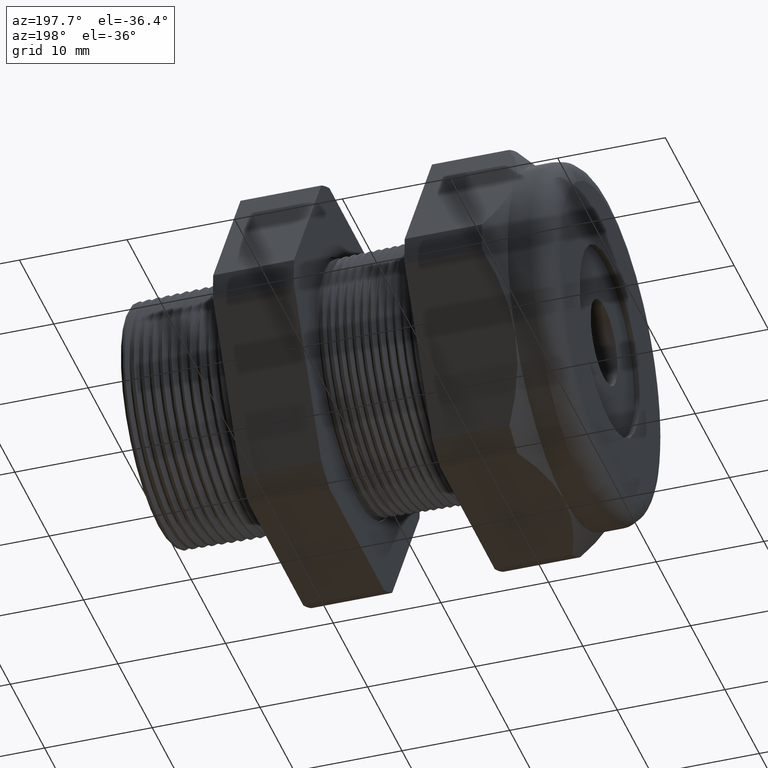
[diagram: clean part render]
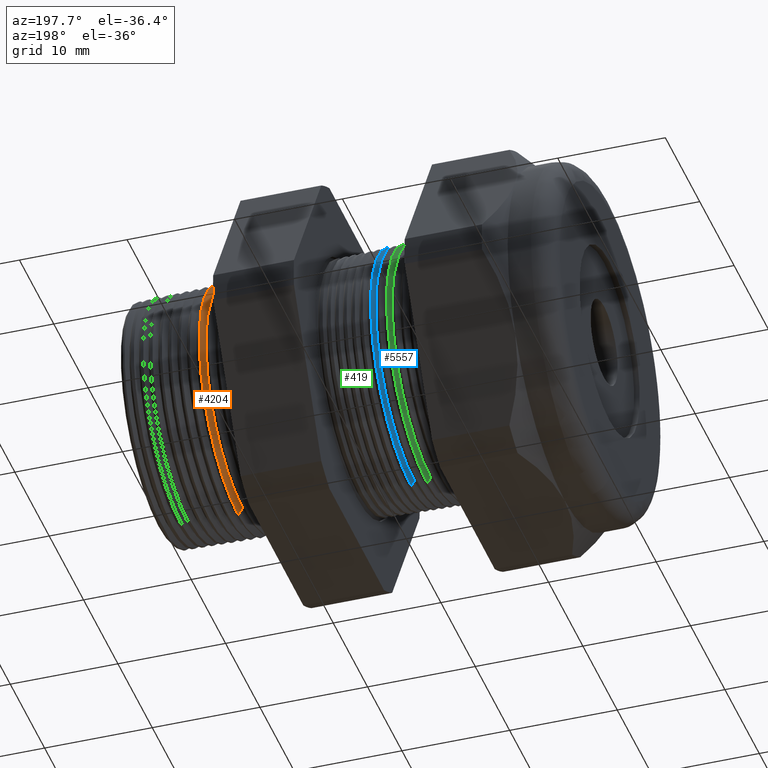
[diagram: same view with three faces highlighted in distinct colors, each labeled with its STEP entity id]
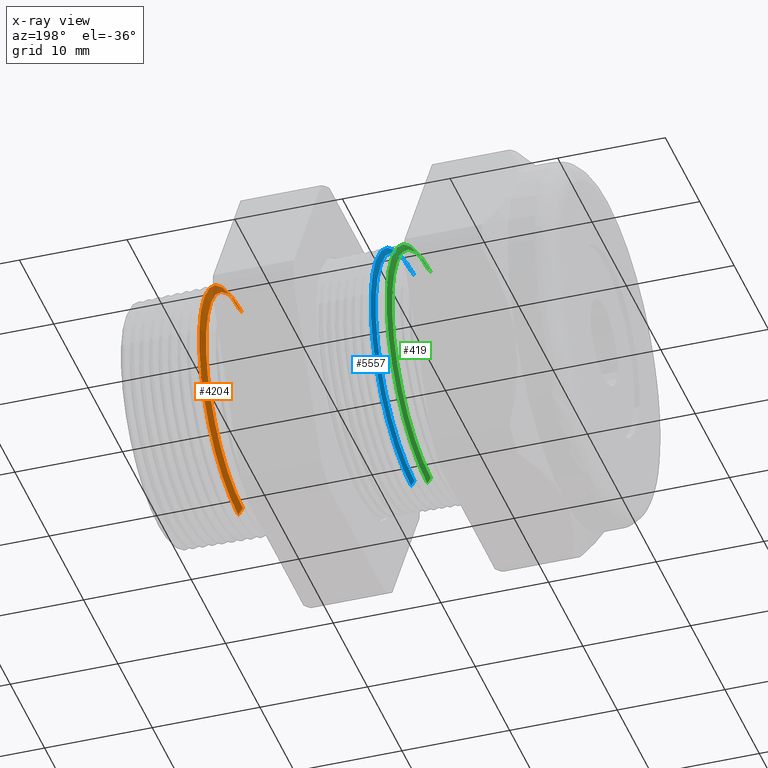
[diagram: x-ray of the same camera — body ghosted, the three highlighted faces saturated]
A machine part, auxiliary view with three faces highlighted in distinct colors.
The next image is the same camera in x-ray (body ghosted, the three faces saturated) — at least one of them is partly hidden behind the body in this view.
Their STEP definitions:

[orange] entity #4204 — the highlighted conical surface has half-angle 58.5 deg.
#1568 = CONICAL_SURFACE ( 'NONE', #1629, 0.4212184895733915900, 1.021017612416699400 ) ;
#1569 = FACE_OUTER_BOUND ( 'NONE', #4205, .T. ) ;
#1603 = DIRECTION ( 'NONE',  ( 0.5224985647159347000, 0.0000000000000000000, -0.8526401643541008400 ) ) ;
#1604 = VECTOR ( 'NONE', #1603, 39.37007874015748100 ) ;
#1605 = CARTESIAN_POINT ( 'NONE',  ( -0.1884707356790752100, 0.0000000000000000000, -0.4212184895733915900 ) ) ;
#1606 = LINE ( 'NONE', #1605, #1604 ) ;
#1621 = CARTESIAN_POINT ( 'NONE',  ( -0.1884707356790752100, 5.327770295935951800E-017, -0.4212184895733915900 ) ) ;
#1622 = DIRECTION ( 'NONE',  ( 0.0000000000000000000, 0.0000000000000000000, -1.000000000000000000 ) ) ;
#1623 = DIRECTION ( 'NONE',  ( 1.000000000000000000, 0.0000000000000000000, 0.0000000000000000000 ) ) ;
#1624 = AXIS2_PLACEMENT_3D ( 'NONE', #1630, #1623, #1622 ) ;
#1625 = CIRCLE ( 'NONE', #1624, 0.4212184895733915900 ) ;
#1626 = DIRECTION ( 'NONE',  ( 0.0000000000000000000, 0.0000000000000000000, -1.000000000000000000 ) ) ;
#1627 = DIRECTION ( 'NONE',  ( 1.000000000000000000, 0.0000000000000000000, 0.0000000000000000000 ) ) ;
#1628 = CARTESIAN_POINT ( 'NONE',  ( -0.1884707356790752100, 0.0000000000000000000, 0.0000000000000000000 ) ) ;
#1629 = AXIS2_PLACEMENT_3D ( 'NONE', #1628, #1627, #1626 ) ;
#1630 = CARTESIAN_POINT ( 'NONE',  ( -0.1884707356790752100, 0.0000000000000000000, 0.0000000000000000000 ) ) ;
#1647 = CARTESIAN_POINT ( 'NONE',  ( -0.1720291532523846000, 5.487014229667634400E-017, -0.4480487135954552300 ) ) ;
#1648 = DIRECTION ( 'NONE',  ( 0.0000000000000000000, 0.0000000000000000000, -1.000000000000000000 ) ) ;
#1649 = DIRECTION ( 'NONE',  ( -1.000000000000000000, 0.0000000000000000000, 0.0000000000000000000 ) ) ;
#1650 = CARTESIAN_POINT ( 'NONE',  ( -0.1720291532523846000, 0.0000000000000000000, 0.0000000000000000000 ) ) ;
#1651 = AXIS2_PLACEMENT_3D ( 'NONE', #1650, #1649, #1648 ) ;
#1652 = CIRCLE ( 'NONE', #1651, 0.4480487135954552300 ) ;
#1653 = CARTESIAN_POINT ( 'NONE',  ( -0.1720291532523846000, 0.0000000000000000000, 0.4480487135954552300 ) ) ;
#1654 = DIRECTION ( 'NONE',  ( 0.5224985647159347000, 1.044183048100722800E-016, 0.8526401643541008400 ) ) ;
#1655 = VECTOR ( 'NONE', #1654, 39.37007874015748100 ) ;
#1656 = CARTESIAN_POINT ( 'NONE',  ( -0.1884707356790752100, 5.158438749977368000E-017, 0.4212184895733915900 ) ) ;
#1657 = LINE ( 'NONE', #1656, #1655 ) ;
#1658 = CARTESIAN_POINT ( 'NONE',  ( -0.1884707356790752100, 0.0000000000000000000, 0.4212184895733915900 ) ) ;
#4204 = ADVANCED_FACE ( 'NONE', ( #1569 ), #1568, .T. ) ;
#4205 = EDGE_LOOP ( 'NONE', ( #4206, #4219, #4222, #4225 ) ) ;
#4206 = ORIENTED_EDGE ( 'NONE', *, *, #4207, .T. ) ;
#4207 = EDGE_CURVE ( 'NONE', #4208, #4218, #1625, .T. ) ;
#4208 = VERTEX_POINT ( 'NONE', #1621 ) ;
#4215 = EDGE_CURVE ( 'NONE', #4208, #4224, #1606, .T. ) ;
#4218 = VERTEX_POINT ( 'NONE', #1658 ) ;
#4219 = ORIENTED_EDGE ( 'NONE', *, *, #4220, .T. ) ;
#4220 = EDGE_CURVE ( 'NONE', #4218, #4221, #1657, .T. ) ;
#4221 = VERTEX_POINT ( 'NONE', #1653 ) ;
#4222 = ORIENTED_EDGE ( 'NONE', *, *, #4223, .T. ) ;
#4223 = EDGE_CURVE ( 'NONE', #4221, #4224, #1652, .T. ) ;
#4224 = VERTEX_POINT ( 'NONE', #1647 ) ;
#4225 = ORIENTED_EDGE ( 'NONE', *, *, #4215, .F. ) ;

[blue] entity #5557 — the highlighted conical surface has half-angle 58.5 deg.
#3968 = LINE ( 'NONE', #4027, #4026 ) ;
#3969 = CARTESIAN_POINT ( 'NONE',  ( -0.8165405736958172300, 5.571220089116329200E-017, -0.4446307351718083400 ) ) ;
#3970 = DIRECTION ( 'NONE',  ( 0.0000000000000000000, 0.0000000000000000000, -1.000000000000000000 ) ) ;
#3971 = DIRECTION ( 'NONE',  ( 1.000000000000000000, 0.0000000000000000000, 0.0000000000000000000 ) ) ;
#3972 = CARTESIAN_POINT ( 'NONE',  ( -0.8165405736958172300, 0.0000000000000000000, 0.0000000000000000000 ) ) ;
#3973 = AXIS2_PLACEMENT_3D ( 'NONE', #3972, #3971, #3970 ) ;
#3974 = CONICAL_SURFACE ( 'NONE', #3973, 0.4446307351718083400, 1.021017612416699200 ) ;
#3979 = FACE_OUTER_BOUND ( 'NONE', #5570, .T. ) ;
#4007 = DIRECTION ( 'NONE',  ( 0.0000000000000000000, 0.0000000000000000000, -1.000000000000000000 ) ) ;
#4008 = DIRECTION ( 'NONE',  ( -1.000000000000000000, 0.0000000000000000000, 0.0000000000000000000 ) ) ;
#4009 = CARTESIAN_POINT ( 'NONE',  ( -0.8043001372766740400, 0.0000000000000000000, 0.0000000000000000000 ) ) ;
#4010 = AXIS2_PLACEMENT_3D ( 'NONE', #4009, #4008, #4007 ) ;
#4011 = CIRCLE ( 'NONE', #4010, 0.4646053119935832900 ) ;
#4012 = CARTESIAN_POINT ( 'NONE',  ( -0.8043001372766740400, 5.689774081997992500E-017, -0.4646053119935833500 ) ) ;
#4013 = DIRECTION ( 'NONE',  ( 0.5224985647159348100, 1.044183048100722500E-016, 0.8526401643541007300 ) ) ;
#4014 = VECTOR ( 'NONE', #4013, 39.37007874015748900 ) ;
#4015 = CARTESIAN_POINT ( 'NONE',  ( -0.8165405736958172300, 5.445156066306895900E-017, 0.4446307351718083400 ) ) ;
#4016 = LINE ( 'NONE', #4015, #4014 ) ;
#4018 = CARTESIAN_POINT ( 'NONE',  ( -0.8043001372766740400, 0.0000000000000000000, 0.4646053119935833500 ) ) ;
#4019 = CARTESIAN_POINT ( 'NONE',  ( -0.8165405736958172300, 0.0000000000000000000, 0.4446307351718083400 ) ) ;
#4020 = DIRECTION ( 'NONE',  ( 0.0000000000000000000, 0.0000000000000000000, -1.000000000000000000 ) ) ;
#4021 = DIRECTION ( 'NONE',  ( 1.000000000000000000, 0.0000000000000000000, 0.0000000000000000000 ) ) ;
#4022 = CARTESIAN_POINT ( 'NONE',  ( -0.8165405736958172300, 0.0000000000000000000, 0.0000000000000000000 ) ) ;
#4023 = AXIS2_PLACEMENT_3D ( 'NONE', #4022, #4021, #4020 ) ;
#4024 = CIRCLE ( 'NONE', #4023, 0.4446307351718083400 ) ;
#4025 = DIRECTION ( 'NONE',  ( 0.5224985647159348100, 0.0000000000000000000, -0.8526401643541007300 ) ) ;
#4026 = VECTOR ( 'NONE', #4025, 39.37007874015748900 ) ;
#4027 = CARTESIAN_POINT ( 'NONE',  ( -0.8165405736958172300, 0.0000000000000000000, -0.4446307351718083400 ) ) ;
#5557 = ADVANCED_FACE ( 'NONE', ( #3979 ), #3974, .T. ) ;
#5558 = VERTEX_POINT ( 'NONE', #3969 ) ;
#5559 = EDGE_CURVE ( 'NONE', #5558, #5568, #3968, .T. ) ;
#5560 = ORIENTED_EDGE ( 'NONE', *, *, #5559, .F. ) ;
#5561 = EDGE_CURVE ( 'NONE', #5558, #5562, #4024, .T. ) ;
#5562 = VERTEX_POINT ( 'NONE', #4019 ) ;
#5563 = VERTEX_POINT ( 'NONE', #4018 ) ;
#5565 = ORIENTED_EDGE ( 'NONE', *, *, #5561, .T. ) ;
#5566 = ORIENTED_EDGE ( 'NONE', *, *, #5567, .T. ) ;
#5567 = EDGE_CURVE ( 'NONE', #5562, #5563, #4016, .T. ) ;
#5568 = VERTEX_POINT ( 'NONE', #4012 ) ;
#5570 = EDGE_LOOP ( 'NONE', ( #5565, #5566, #5574, #5560 ) ) ;
#5572 = EDGE_CURVE ( 'NONE', #5563, #5568, #4011, .T. ) ;
#5574 = ORIENTED_EDGE ( 'NONE', *, *, #5572, .T. ) ;

[green] entity #419 — the highlighted conical surface has half-angle 58.5 deg.
#45 = EDGE_CURVE ( 'NONE', #46, #414, #564, .T. ) ;
#46 = VERTEX_POINT ( 'NONE', #559 ) ;
#48 = VERTEX_POINT ( 'NONE', #617 ) ;
#49 = ORIENTED_EDGE ( 'NONE', *, *, #45, .T. ) ;
#62 = VERTEX_POINT ( 'NONE', #594 ) ;
#72 = ORIENTED_EDGE ( 'NONE', *, *, #402, .T. ) ;
#402 = EDGE_CURVE ( 'NONE', #48, #62, #1262, .T. ) ;
#410 = ORIENTED_EDGE ( 'NONE', *, *, #413, .F. ) ;
#412 = EDGE_CURVE ( 'NONE', #62, #46, #1304, .T. ) ;
#413 = EDGE_CURVE ( 'NONE', #48, #414, #1300, .T. ) ;
#414 = VERTEX_POINT ( 'NONE', #1296 ) ;
#415 = ORIENTED_EDGE ( 'NONE', *, *, #412, .T. ) ;
#418 = EDGE_LOOP ( 'NONE', ( #72, #415, #49, #410 ) ) ;
#419 = ADVANCED_FACE ( 'NONE', ( #1289 ), #1288, .T. ) ;
#559 = CARTESIAN_POINT ( 'NONE',  ( -0.8633525379665555300, 0.0000000000000000000, 0.4661516535265203800 ) ) ;
#560 = DIRECTION ( 'NONE',  ( 0.0000000000000000000, 0.0000000000000000000, -1.000000000000000000 ) ) ;
#561 = DIRECTION ( 'NONE',  ( -1.000000000000000000, 0.0000000000000000000, 0.0000000000000000000 ) ) ;
#562 = CARTESIAN_POINT ( 'NONE',  ( -0.8633525379665555300, 0.0000000000000000000, 0.0000000000000000000 ) ) ;
#563 = AXIS2_PLACEMENT_3D ( 'NONE', #562, #561, #560 ) ;
#564 = CIRCLE ( 'NONE', #563, 0.4661516535265203300 ) ;
#594 = CARTESIAN_POINT ( 'NONE',  ( -0.8765405736958171700, 0.0000000000000000000, 0.4446307351718083400 ) ) ;
#617 = CARTESIAN_POINT ( 'NONE',  ( -0.8765405736958171700, 5.580979396460794700E-017, -0.4446307351718083400 ) ) ;
#1259 = DIRECTION ( 'NONE',  ( 0.0000000000000000000, 0.0000000000000000000, -1.000000000000000000 ) ) ;
#1260 = DIRECTION ( 'NONE',  ( 1.000000000000000000, 0.0000000000000000000, 0.0000000000000000000 ) ) ;
#1261 = AXIS2_PLACEMENT_3D ( 'NONE', #1267, #1260, #1259 ) ;
#1262 = CIRCLE ( 'NONE', #1261, 0.4446307351718083400 ) ;
#1267 = CARTESIAN_POINT ( 'NONE',  ( -0.8765405736958171700, 0.0000000000000000000, 0.0000000000000000000 ) ) ;
#1283 = DIRECTION ( 'NONE',  ( 0.0000000000000000000, 0.0000000000000000000, -1.000000000000000000 ) ) ;
#1284 = DIRECTION ( 'NONE',  ( 1.000000000000000000, 0.0000000000000000000, 0.0000000000000000000 ) ) ;
#1285 = CARTESIAN_POINT ( 'NONE',  ( -0.8765405736958171700, 0.0000000000000000000, 0.0000000000000000000 ) ) ;
#1286 = AXIS2_PLACEMENT_3D ( 'NONE', #1285, #1284, #1283 ) ;
#1288 = CONICAL_SURFACE ( 'NONE', #1286, 0.4446307351718083400, 1.021017612416699200 ) ;
#1289 = FACE_OUTER_BOUND ( 'NONE', #418, .T. ) ;
#1296 = CARTESIAN_POINT ( 'NONE',  ( -0.8633525379665555300, 5.708711304084992300E-017, -0.4661516535265203800 ) ) ;
#1297 = DIRECTION ( 'NONE',  ( 0.5224985647159348100, 0.0000000000000000000, -0.8526401643541007300 ) ) ;
#1298 = VECTOR ( 'NONE', #1297, 39.37007874015748900 ) ;
#1299 = CARTESIAN_POINT ( 'NONE',  ( -0.8765405736958171700, 0.0000000000000000000, -0.4446307351718083400 ) ) ;
#1300 = LINE ( 'NONE', #1299, #1298 ) ;
#1301 = DIRECTION ( 'NONE',  ( 0.5224985647159348100, 1.044183048100722500E-016, 0.8526401643541007300 ) ) ;
#1302 = VECTOR ( 'NONE', #1301, 39.37007874015748900 ) ;
#1303 = CARTESIAN_POINT ( 'NONE',  ( -0.8765405736958171700, 5.445156066306895900E-017, 0.4446307351718083400 ) ) ;
#1304 = LINE ( 'NONE', #1303, #1302 ) ;